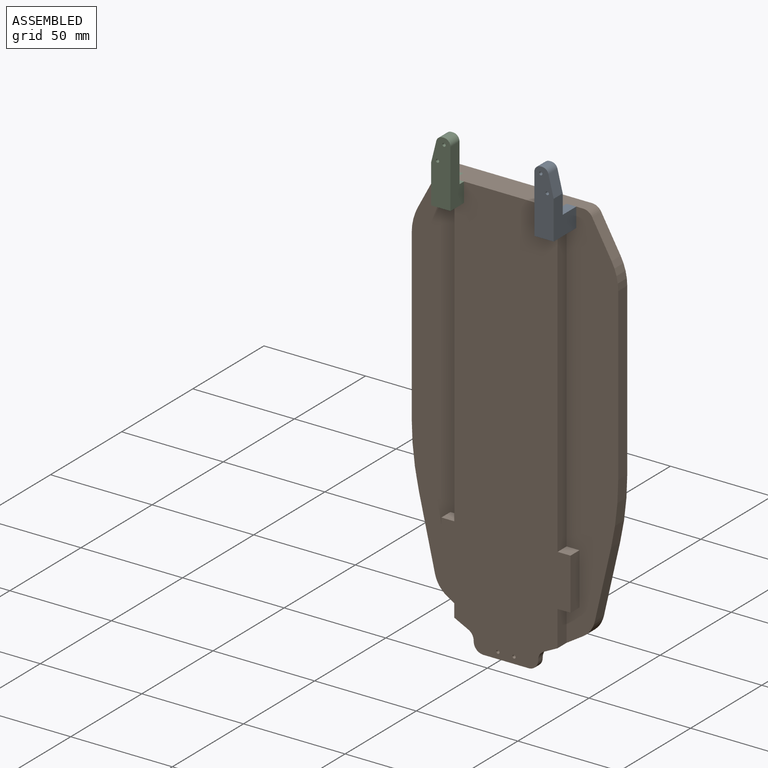
[diagram: assembled view]
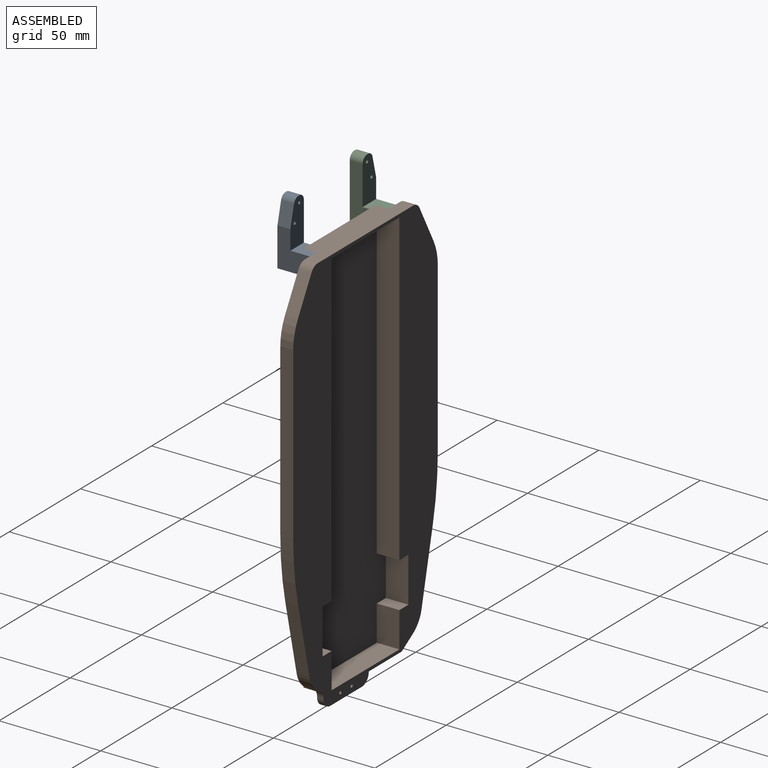
[diagram: assembled view, second angle]
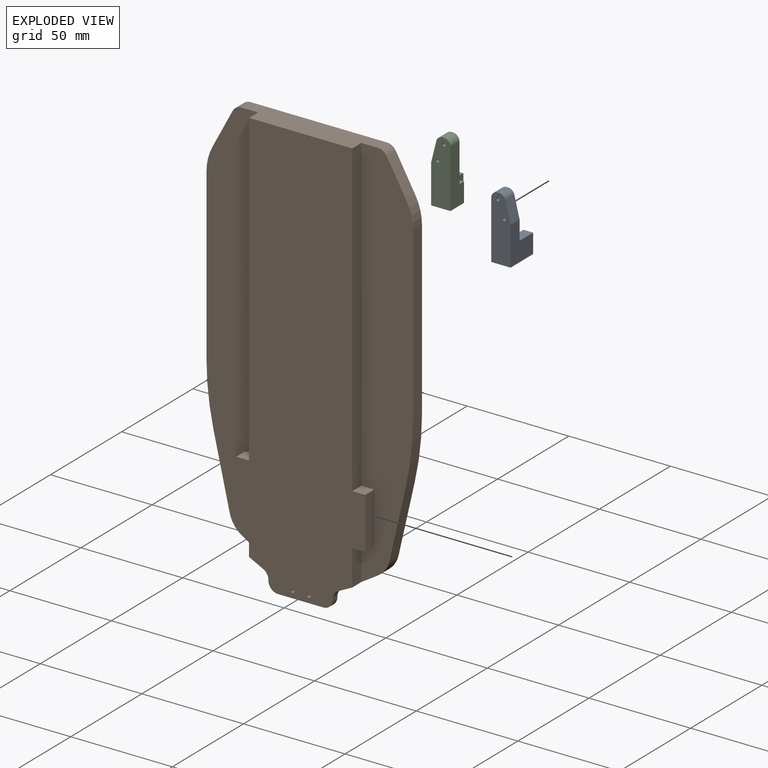
[diagram: exploded view]
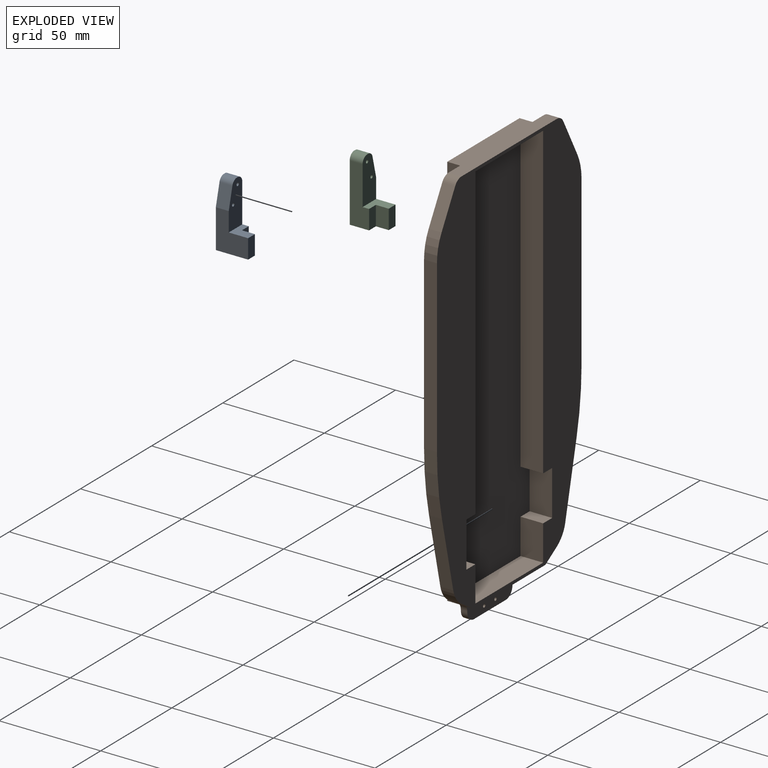
[diagram: exploded view, second angle]
ASSEMBLY  parts=3 mates=2
PART A: 15 faces, bbox 9.5x15.9x31.8 mm
  f0: plane 22.23x9.53mm, normal (0,1,0), area 184.2mm2, adj f1,f2,f3,f4,f5,f7,f9,f10
  f1: plane 28.58x9.53mm, normal (-1,0,0), area 211.7mm2, adj f0,f6,f8,f9,f12,f14
  f2: plane 6.35x0.7mm, normal (0,0,1), area 4.4mm2, adj f0,f8,f9,f10
  f3: plane 10.3x6.35mm, normal (0.97,0,0.24), area 67.4mm2, adj f0,f4,f8,f10
  f4: plane 19.05x15.88mm, normal (1,0,0), area 211.7mm2, adj f0,f3,f6,f8,f13,f14
  f5: cylinder r=0.79mm len=6.35mm, axis (0,1,0), area 31.7mm2, adj f0,f8
  f6: plane 15.88x9.53mm, normal (0,0,-1), area 121mm2, adj f1,f4,f8,f11,f12,f13
  f7: cylinder r=0.79mm len=6.35mm, axis (0,1,0), area 31.7mm2, adj f0,f8
  f8: plane 31.75x9.53mm, normal (0,-1,0), area 274.9mm2, adj f1,f2,f3,f4,f5,f6,f7,f9
  f9: cylinder r=3.17mm len=6.35mm, axis (0,1,0), area 31.7mm2, adj f0,f1,f2,f8
  f10: cylinder r=3.17mm len=6.35mm, axis (0,-1,0), area 26.7mm2, adj f0,f2,f3,f8
  f11: plane 9.53x6.35mm, normal (-1,0,0), area 60.5mm2, adj f6,f12,f13,f14
  f12: plane 9.53x4.76mm, normal (0,1,0), area 45.4mm2, adj f1,f6,f11,f14
  f13: plane 9.53x4.76mm, normal (0,1,0), area 45.4mm2, adj f4,f6,f11,f14
  f14: plane 9.53x9.53mm, normal (0,0,1), area 60.5mm2, adj f0,f1,f4,f11,f12,f13
PART B: 57 faces, bbox 101.6x208x12.7 mm
  f0: plane 50.8x9.53mm, normal (0,1,0), area 483.9mm2, adj f12,f13,f15,f16,f21,f52
  f1: plane 47.63x11.11mm, normal (0,1,0), area 529.2mm2, adj f15,f32,f33,f36
  f2: plane 47.63x11.11mm, normal (0,-1,0), area 529.2mm2, adj f15,f34,f35,f36
  f3: plane 6.35x6.35mm, normal (0,-1,0), area 40.3mm2, adj f4,f11,f14,f25
  f4: plane 25.4x6.35mm, normal (1,0,0), area 161.3mm2, adj f3,f5,f14,f25
  f5: plane 6.35x6.35mm, normal (0,1,0), area 40.3mm2, adj f4,f12,f14,f25
  f6: plane 6.35x6.35mm, normal (0,1,0), area 40.3mm2, adj f7,f13,f14,f20
  f7: plane 25.4x6.35mm, normal (-1,0,0), area 161.3mm2, adj f6,f8,f14,f20
  f8: plane 6.35x6.35mm, normal (0,-1,0), area 40.3mm2, adj f7,f9,f14,f20
  f9: plane 152.4x6.35mm, normal (-1,0,0), area 967.7mm2, adj f8,f10,f14,f20
  f10: plane 67x12.7mm, normal (0,-1,0), area 748.1mm2, adj f9,f11,f14,f15,f20,f25,f43,f44
  f11: plane 152.4x6.35mm, normal (1,0,0), area 967.7mm2, adj f3,f10,f14,f25
  f12: plane 17.46x6.35mm, normal (1,0,0), area 110.9mm2, adj f0,f5,f14,f25,f49
  f13: plane 17.46x6.35mm, normal (-1,0,0), area 110.9mm2, adj f0,f6,f14,f20,f45
  f14: plane 207.96x63.5mm, normal (0,0,-1), area 10679.7mm2, adj f3,f4,f5,f6,f7,f8,f9,f10
  f15: plane 195.26x101.6mm, normal (0,0,1), area 8990.9mm2, adj f0,f1,f2,f10,f16,f17,f18,f19
  f16: plane 7.99x6.35mm, normal (-0.53,0.85,0), area 59.8mm2, adj f0,f15,f20,f37
  f17: plane 34.78x7.95mm, normal (-0.97,0.22,0), area 226.6mm2, adj f15,f20,f37,f39
  f18: plane 82.84x6.35mm, normal (-1,0,0), area 526mm2, adj f15,f20,f39,f41
  f19: plane 18.53x9.87mm, normal (-0.88,-0.47,0), area 133.3mm2, adj f15,f20,f41,f43
  f20: plane 195.26x25.4mm, normal (0,0,-1), area 4084.8mm2, adj f6,f7,f8,f9,f10,f13,f16,f17
  f21: plane 7.99x6.35mm, normal (0.53,0.85,0), area 59.8mm2, adj f0,f15,f25,f38
  f22: plane 17.01x9.57mm, normal (0.87,-0.49,0), area 123.9mm2, adj f15,f25,f42,f44
  f23: plane 83.95x6.35mm, normal (1,0,0), area 533.1mm2, adj f15,f25,f40,f42
  f24: plane 34.78x7.95mm, normal (0.97,0.22,0), area 226.6mm2, adj f15,f25,f38,f40
  f25: plane 195.26x25.4mm, normal (0,0,-1), area 4094.6mm2, adj f3,f4,f5,f10,f11,f12,f21,f22
  f26: plane 11.11x6.35mm, normal (0,1,0), area 70.6mm2, adj f15,f27,f33,f36
  f27: plane 22.23x11.11mm, normal (-1,0,0), area 247mm2, adj f15,f26,f28,f36
  f28: plane 11.11x6.35mm, normal (0,-1,0), area 70.6mm2, adj f15,f27,f34,f36
  f29: plane 11.11x6.35mm, normal (0,-1,0), area 70.6mm2, adj f15,f30,f35,f36
  f30: plane 22.23x11.11mm, normal (1,0,0), area 247mm2, adj f15,f29,f31,f36
  f31: plane 11.11x6.35mm, normal (0,1,0), area 70.6mm2, adj f15,f30,f32,f36
  f32: plane 152.4x11.11mm, normal (1,0,0), area 1693.5mm2, adj f1,f15,f31,f36
  f33: plane 152.4x11.11mm, normal (-1,0,0), area 1693.5mm2, adj f1,f15,f26,f36
  f34: plane 17.46x11.11mm, normal (-1,0,0), area 194.1mm2, adj f2,f15,f28,f36
  f35: plane 17.46x11.11mm, normal (1,0,0), area 194.1mm2, adj f2,f15,f29,f36
  f36: plane 192.09x60.33mm, normal (0,0,1), area 9430.4mm2, adj f1,f2,f26,f27,f28,f29,f30,f31
  f37: cylinder r=13.37mm len=8.36mm, axis (0,0,-1), area 66.9mm2, adj f15,f16,f17,f20
  f38: cylinder r=13.37mm len=8.36mm, axis (0,0,1), area 66.9mm2, adj f15,f21,f24,f25
  f39: cylinder r=139.7mm len=31.13mm, axis (0,0,1), area 199.3mm2, adj f15,f17,f18,f20
  f40: cylinder r=139.7mm len=31.13mm, axis (0,0,1), area 199.3mm2, adj f15,f23,f24,f25
  f41: cylinder r=25.4mm len=11.94mm, axis (0,0,-1), area 78.9mm2, adj f15,f18,f19,f20
  f42: cylinder r=25.4mm len=12.45mm, axis (0,0,1), area 82.6mm2, adj f15,f22,f23,f25
  f43: cylinder r=5.08mm len=6.35mm, axis (0,0,1), area 34.9mm2, adj f10,f15,f19,f20
  f44: cylinder r=5.08mm len=6.35mm, axis (0,0,-1), area 34.1mm2, adj f10,f15,f22,f25
  f45: plane 6.89x3.45mm, normal (-0.45,0.89,0), area 24.5mm2, adj f13,f14,f52,f56
  f46: plane 3.18x0.23mm, normal (-1,0,0), area 0.7mm2, adj f14,f52,f53,f56
  f47: plane 22.23x3.18mm, normal (0,1,0), area 70.6mm2, adj f14,f52,f53,f54
  f48: plane 3.18x0.23mm, normal (1,0,0), area 0.7mm2, adj f14,f52,f54,f55
  f49: plane 6.89x3.45mm, normal (0.45,0.89,0), area 24.5mm2, adj f12,f14,f52,f55
  f50: cylinder r=0.79mm len=3.18mm, axis (0,0,-1), area 15.8mm2, adj f14,f52
  f51: cylinder r=0.79mm len=3.18mm, axis (0,0,-1), area 15.8mm2, adj f14,f52
  f52: plane 50.8x12.7mm, normal (0,0,1), area 437.8mm2, adj f0,f45,f46,f47,f48,f49,f50,f51
  f53: cylinder r=4.76mm len=4.76mm, axis (0,0,1), area 23.8mm2, adj f14,f46,f47,f52
  f54: cylinder r=4.76mm len=4.76mm, axis (0,0,-1), area 23.8mm2, adj f14,f47,f48,f52
  f55: cylinder r=4.76mm len=4.26mm, axis (0,0,-1), area 16.7mm2, adj f14,f48,f49,f52
  f56: cylinder r=4.76mm len=4.26mm, axis (0,0,1), area 16.7mm2, adj f14,f45,f46,f52
PART C: 15 faces, bbox 9.5x15.9x31.8 mm
  f0: plane 22.23x9.53mm, normal (0,1,0), area 184.2mm2, adj f1,f2,f3,f4,f5,f7,f9,f10
  f1: plane 28.58x9.53mm, normal (1,0,0), area 211.7mm2, adj f0,f6,f8,f9,f12,f14
  f2: plane 6.35x0.7mm, normal (0,0,1), area 4.4mm2, adj f0,f8,f9,f10
  f3: plane 10.3x6.35mm, normal (-0.97,0,0.24), area 67.4mm2, adj f0,f4,f8,f10
  f4: plane 19.05x15.88mm, normal (-1,0,0), area 211.7mm2, adj f0,f3,f6,f8,f13,f14
  f5: cylinder r=0.79mm len=6.35mm, axis (0,1,0), area 31.7mm2, adj f0,f8
  f6: plane 15.88x9.53mm, normal (0,0,-1), area 121mm2, adj f1,f4,f8,f11,f12,f13
  f7: cylinder r=0.79mm len=6.35mm, axis (0,1,0), area 31.7mm2, adj f0,f8
  f8: plane 31.75x9.53mm, normal (0,-1,0), area 274.9mm2, adj f1,f2,f3,f4,f5,f6,f7,f9
  f9: cylinder r=3.17mm len=6.35mm, axis (0,1,0), area 31.7mm2, adj f0,f1,f2,f8
  f10: cylinder r=3.17mm len=6.35mm, axis (0,-1,0), area 26.7mm2, adj f0,f2,f3,f8
  f11: plane 9.53x6.35mm, normal (1,0,0), area 60.5mm2, adj f6,f12,f13,f14
  f12: plane 9.53x4.76mm, normal (0,1,0), area 45.4mm2, adj f1,f6,f11,f14
  f13: plane 9.53x4.76mm, normal (0,1,0), area 45.4mm2, adj f4,f6,f11,f14
  f14: plane 9.53x9.53mm, normal (0,0,1), area 60.5mm2, adj f0,f1,f4,f11,f12,f13
PLACE A t=(-7.75,-0.49,-3.76)mm
PLACE B rot(axis=(-1,0,0),90deg) t=(107.25,15.39,-4.84)mm
PLACE C t=(222.26,-0.49,-3.76)mm
MATE fastened C.f12 <-> B.f14  axis (0,1,0) through (81.85,2.69,92.8)mm
MATE fastened B.f14 <-> A.f12  axis (0,-1,0) through (132.65,2.69,92.8)mm
